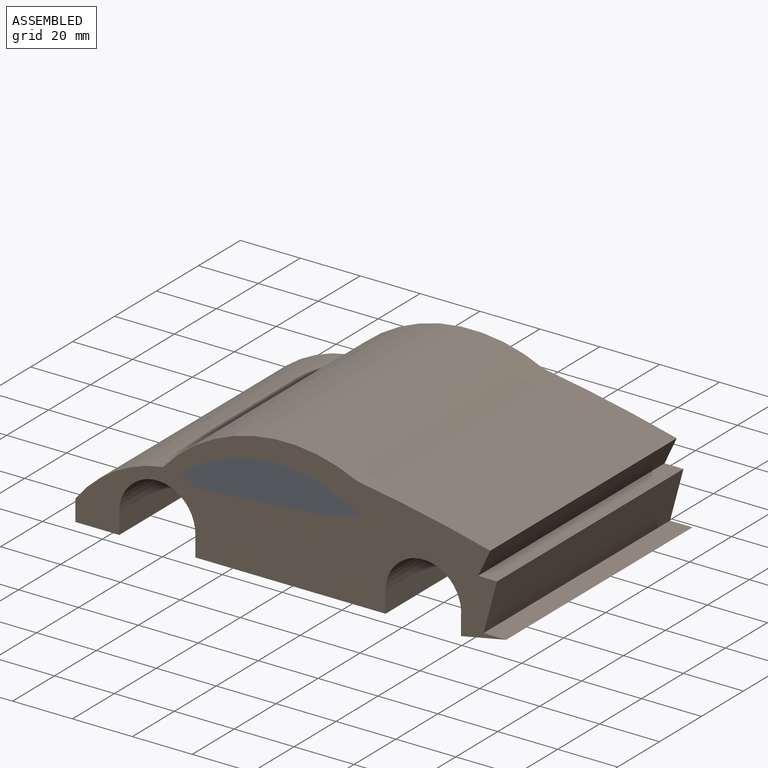
[diagram: assembled view]
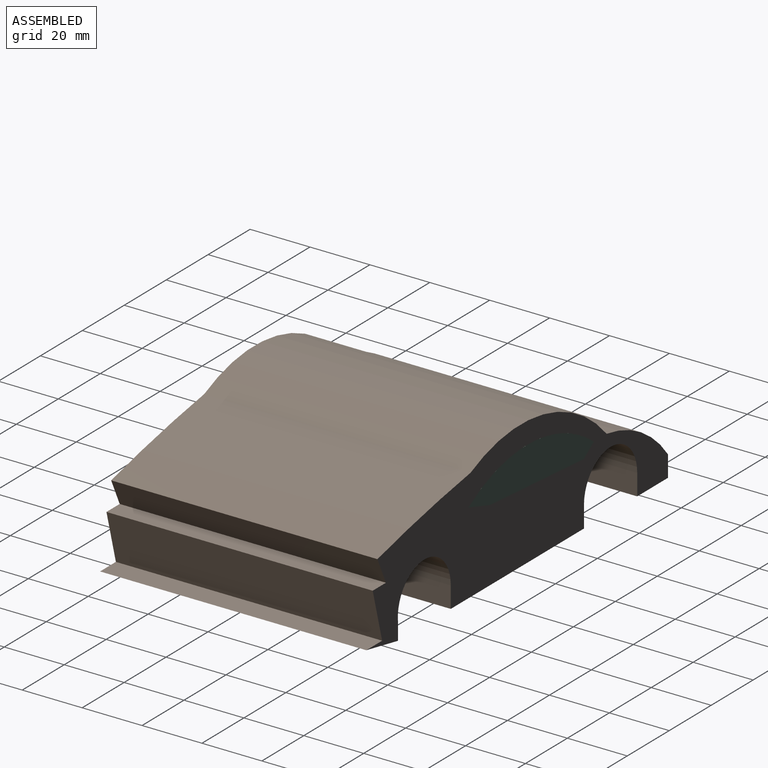
[diagram: assembled view, second angle]
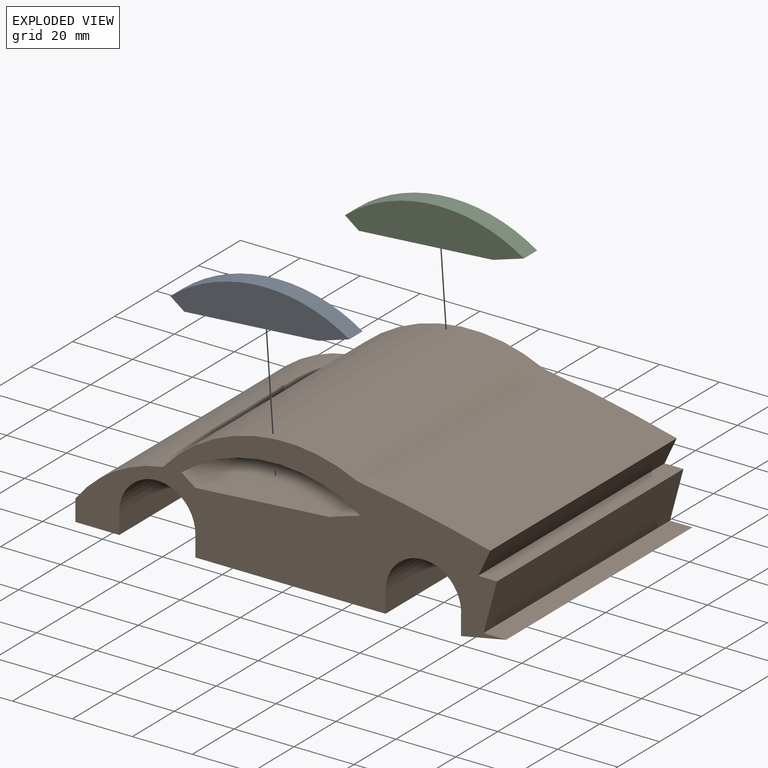
[diagram: exploded view]
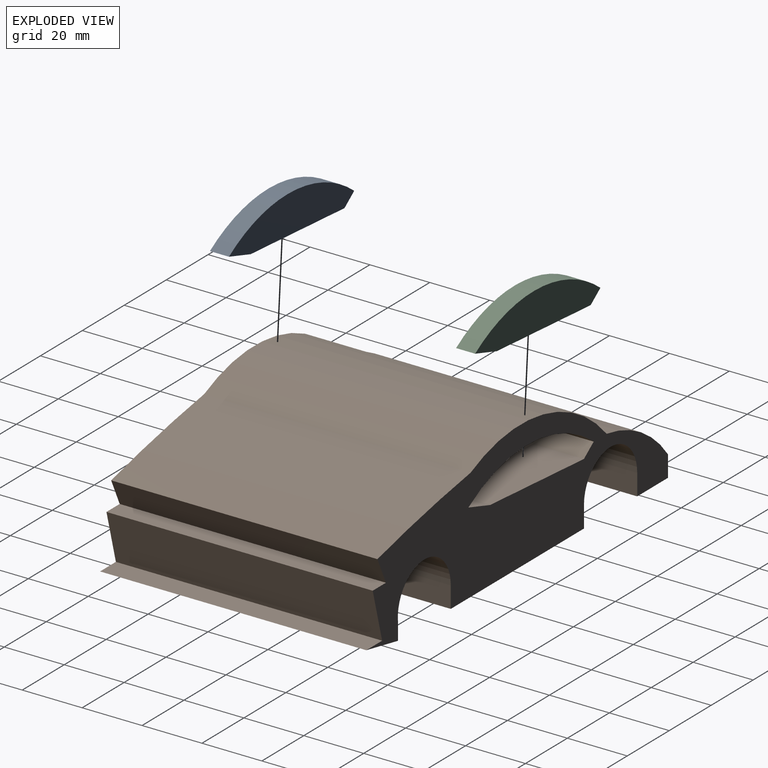
[diagram: exploded view, second angle]
ASSEMBLY  parts=3 mates=2
PART A: 6 faces, bbox 59.8x6.4x14.6 mm
  f0: plane 10.37x6.35mm, normal (0.29,0,-0.96), area 68.9mm2, adj f1,f3,f4,f5
  f1: cylinder r=51.28mm len=59.76mm, axis (0,1,0), area 405.7mm2, adj f0,f2,f4,f5
  f2: plane 6.35x4.65mm, normal (-0.6,0,-0.8), area 36.8mm2, adj f1,f3,f4,f5
  f3: plane 44.74x6.35mm, normal (0.07,0,-1), area 284.8mm2, adj f0,f2,f4,f5
  f4: plane 59.76x14.6mm, normal (0,-1,0), area 556.9mm2, adj f0,f1,f2,f3
  f5: plane 59.76x14.6mm, normal (0,1,0), area 556.9mm2, adj f0,f1,f2,f3
PART B: 23 faces, bbox 143.8x88.9x43 mm
  f0: cylinder r=51.28mm len=88.9mm, axis (0,1,0), area 5679.3mm2, adj f1,f20,f21,f22
  f1: plane 88.9x10.37mm, normal (-0.29,0,0.96), area 964.2mm2, adj f0,f2,f21,f22
  f2: plane 88.9x44.74mm, normal (-0.07,0,1), area 3987.5mm2, adj f1,f20,f21,f22
  f3: plane 88.9x7.1mm, normal (-1,0,0), area 630.9mm2, adj f4,f19,f21,f22
  f4: plane 88.9x14.65mm, normal (0,0,-1), area 1302.8mm2, adj f3,f5,f21,f22
  f5: plane 88.9x7.1mm, normal (1,0,0), area 630.9mm2, adj f4,f6,f21,f22
  f6: cylinder r=12.7mm len=88.9mm, axis (0,1,0), area 3547mm2, adj f5,f7,f21,f22
  f7: plane 88.9x7.1mm, normal (-1,0,0), area 630.9mm2, adj f6,f8,f21,f22
  f8: plane 88.9x63.5mm, normal (0,0,-1), area 5645.2mm2, adj f7,f9,f21,f22
  f9: plane 88.9x7.1mm, normal (1,0,0), area 630.9mm2, adj f8,f10,f21,f22
  f10: cylinder r=12.63mm len=88.9mm, axis (0,1,0), area 3639.5mm2, adj f9,f11,f21,f22
  f11: plane 88.9x5.83mm, normal (-1,0,0), area 518.2mm2, adj f10,f12,f21,f22
  f12: plane 88.9x15.09mm, normal (0.19,0,-0.98), area 1366.6mm2, adj f11,f13,f21,f22
  f13: plane 88.9x7.55mm, normal (0,0,1), area 670.9mm2, adj f12,f14,f21,f22
  f14: plane 88.9x16.79mm, normal (0.97,0,-0.26), area 1545.4mm2, adj f13,f15,f21,f22
  f15: plane 88.9x6.31mm, normal (0,0,1), area 561mm2, adj f14,f16,f21,f22
  f16: plane 88.9x8.67mm, normal (0.91,0,-0.42), area 851mm2, adj f15,f17,f21,f22
  f17: cylinder r=482.45mm len=88.9mm, axis (0,1,0), area 4030.4mm2, adj f16,f18,f21,f22
  f18: cylinder r=54.78mm len=88.9mm, axis (0,1,0), area 6319mm2, adj f17,f19,f21,f22
  f19: cylinder r=44.56mm len=88.9mm, axis (0,1,0), area 3101.6mm2, adj f3,f18,f21,f22
  f20: plane 88.9x4.65mm, normal (0.6,0,0.8), area 515.3mm2, adj f0,f2,f21,f22
  f21: plane 143.84x42.95mm, normal (0,-1,0), area 3084.3mm2, adj f0,f1,f2,f3,f4,f5,f6,f7
  f22: plane 143.84x42.95mm, normal (0,1,0), area 3084.3mm2, adj f0,f1,f2,f3,f4,f5,f6,f7
PART C: same geometry as A
PLACE A t=(-106.75,6.58,51.4)mm
PLACE B t=(-149.91,89.13,-24.16)mm
PLACE C t=(-106.75,89.13,51.4)mm
MATE fastened B.f2 <-> A.f3  axis (-0.07,0,1) through (-146.77,0.23,-1.56)mm
MATE fastened B.f2 <-> C.f3  axis (-0.07,0,1) through (-146.77,89.13,-1.56)mm
